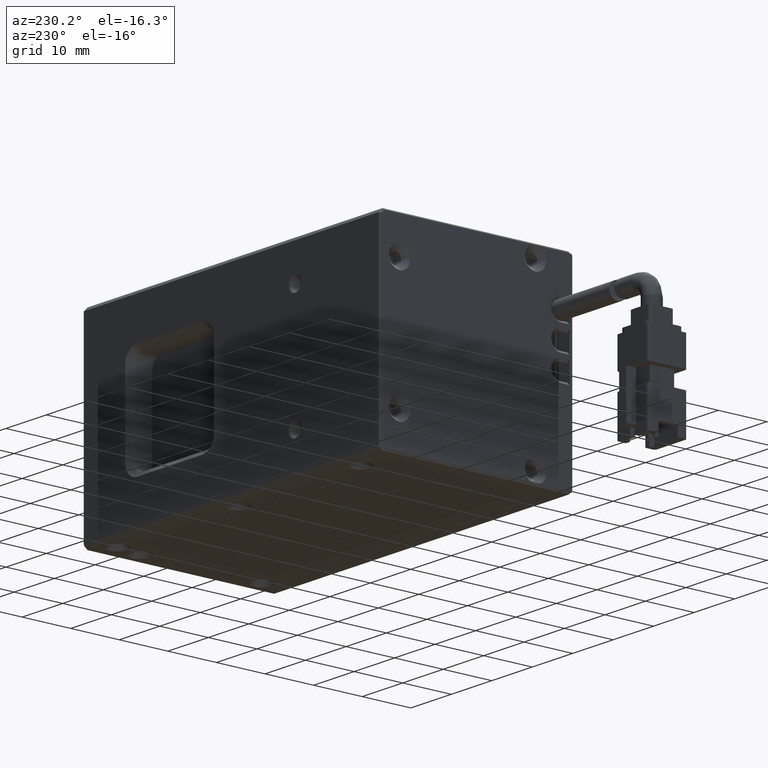
[diagram: clean part render]
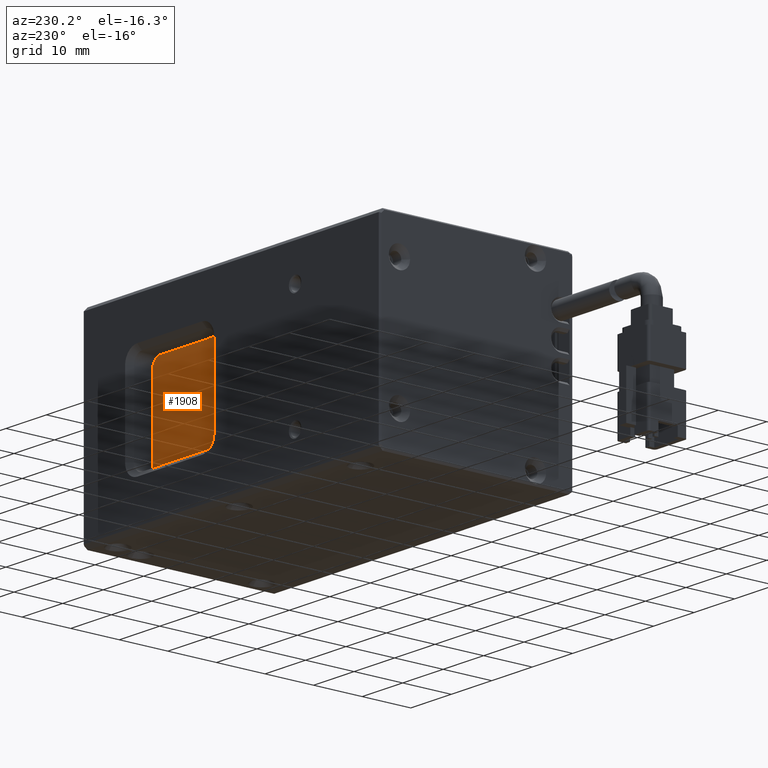
[diagram: same view with one face highlighted and labeled with its STEP entity id]
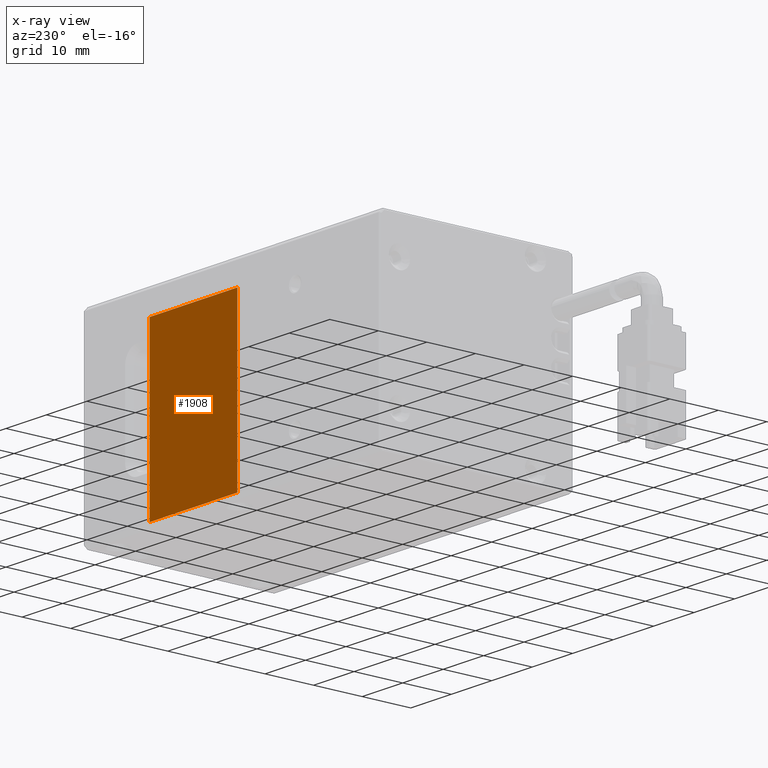
[diagram: x-ray of the same camera — body ghosted, the highlighted face saturated]
A machine part, auxiliary view. The second image highlights one B-rep face of the part: STEP entity #1908.
The next image is the same camera in x-ray: the body ghosted, the highlighted face saturated — about 0% of this face is hidden behind the body in this view.
In plain terms, the highlighted planar face has unit normal (-0, -1, 0).
Its self-contained STEP definition (entity closure, byte-faithful):
#582 = LINE ( 'NONE', #26977, #7610 ) ;
#679 = EDGE_CURVE ( 'NONE', #34389, #25197, #8403, .T. ) ;
#1908 = ADVANCED_FACE ( 'NONE', ( #15297 ), #24964, .F. ) ;
#3356 = VECTOR ( 'NONE', #22762, 1000.000000000000000 ) ;
#5976 = EDGE_LOOP ( 'NONE', ( #9322, #28148, #27038, #24895 ) ) ;
#6533 = DIRECTION ( 'NONE',  ( -1.555744069725232000E-016, -1.000000000000000000, 2.220446049250312800E-016 ) ) ;
#6904 = CARTESIAN_POINT ( 'NONE',  ( 18.46222020198798600, 28.38138602246005200, 3.000000000009560800 ) ) ;
#7610 = VECTOR ( 'NONE', #11192, 1000.000000000000000 ) ;
#8031 = CARTESIAN_POINT ( 'NONE',  ( 18.46222020198797900, 28.38138602246006300, 36.80000000000956100 ) ) ;
#8403 = LINE ( 'NONE', #11289, #22515 ) ;
#9322 = ORIENTED_EDGE ( 'NONE', *, *, #679, .T. ) ;
#11192 = DIRECTION ( 'NONE',  ( 1.555744069725231800E-016, -2.220446049250313100E-016, -1.000000000000000000 ) ) ;
#11289 = CARTESIAN_POINT ( 'NONE',  ( 18.46222020198797900, 28.38138602246006300, 36.80000000000956100 ) ) ;
#12498 = AXIS2_PLACEMENT_3D ( 'NONE', #22423, #6533, #25098 ) ;
#14455 = VERTEX_POINT ( 'NONE', #28390 ) ;
#15297 = FACE_OUTER_BOUND ( 'NONE', #5976, .T. ) ;
#17338 = CARTESIAN_POINT ( 'NONE',  ( 18.46222020198798600, 28.38138602246005200, 3.000000000009557700 ) ) ;
#19109 = EDGE_CURVE ( 'NONE', #20684, #14455, #30765, .T. ) ;
#20684 = VERTEX_POINT ( 'NONE', #17338 ) ;
#21367 = VECTOR ( 'NONE', #28412, 1000.000000000000000 ) ;
#22423 = CARTESIAN_POINT ( 'NONE',  ( -3.237779798012020600, 28.38138602246006700, 36.80000000000955400 ) ) ;
#22515 = VECTOR ( 'NONE', #29835, 1000.000000000000000 ) ;
#22762 = DIRECTION ( 'NONE',  ( -1.000000000000000000, 1.555744069725231500E-016, -3.154567549888187800E-016 ) ) ;
#24140 = EDGE_CURVE ( 'NONE', #25197, #20684, #582, .T. ) ;
#24229 = CARTESIAN_POINT ( 'NONE',  ( -3.237779798012020600, 28.38138602246006700, 36.80000000000955400 ) ) ;
#24895 = ORIENTED_EDGE ( 'NONE', *, *, #26491, .T. ) ;
#24964 = PLANE ( 'NONE',  #12498 ) ;
#25098 = DIRECTION ( 'NONE',  ( 1.000000000000000000, -1.555744069725231800E-016, 1.555744069725232000E-016 ) ) ;
#25197 = VERTEX_POINT ( 'NONE', #8031 ) ;
#25717 = CARTESIAN_POINT ( 'NONE',  ( -3.237779798012013500, 28.38138602246005600, 3.000000000009557700 ) ) ;
#26491 = EDGE_CURVE ( 'NONE', #14455, #34389, #29264, .T. ) ;
#26977 = CARTESIAN_POINT ( 'NONE',  ( 18.46222020198798600, 28.38138602246005200, 3.000000000009560800 ) ) ;
#27038 = ORIENTED_EDGE ( 'NONE', *, *, #19109, .T. ) ;
#28148 = ORIENTED_EDGE ( 'NONE', *, *, #24140, .T. ) ;
#28390 = CARTESIAN_POINT ( 'NONE',  ( -3.237779798012013500, 28.38138602246005600, 3.000000000009557700 ) ) ;
#28412 = DIRECTION ( 'NONE',  ( -1.555744069725231800E-016, 2.220446049250313100E-016, 1.000000000000000000 ) ) ;
#29264 = LINE ( 'NONE', #25717, #21367 ) ;
#29835 = DIRECTION ( 'NONE',  ( 1.000000000000000000, -1.555744069725231500E-016, 3.154567549888187800E-016 ) ) ;
#30765 = LINE ( 'NONE', #6904, #3356 ) ;
#34389 = VERTEX_POINT ( 'NONE', #24229 ) ;